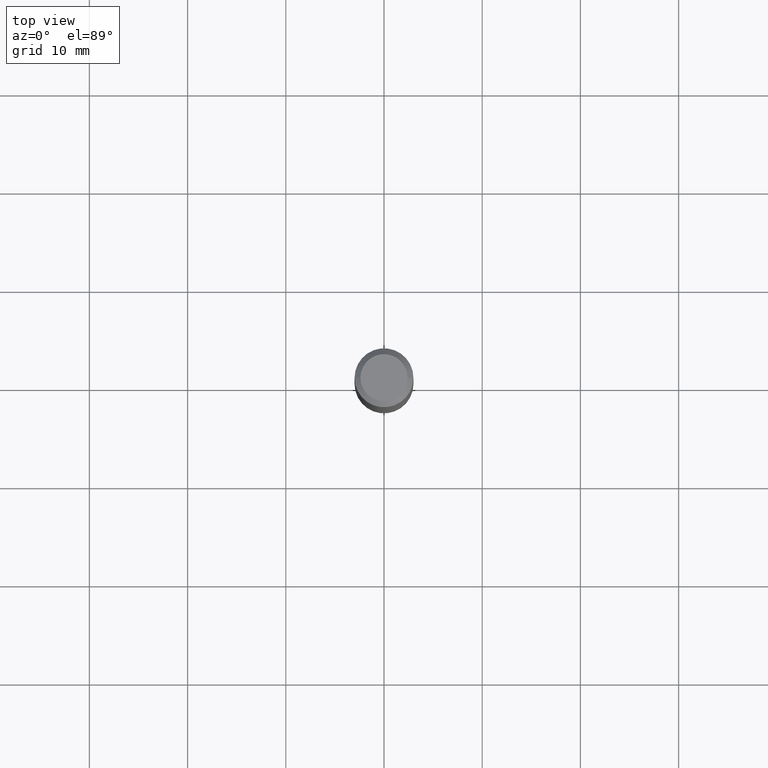
[diagram: clean part render]
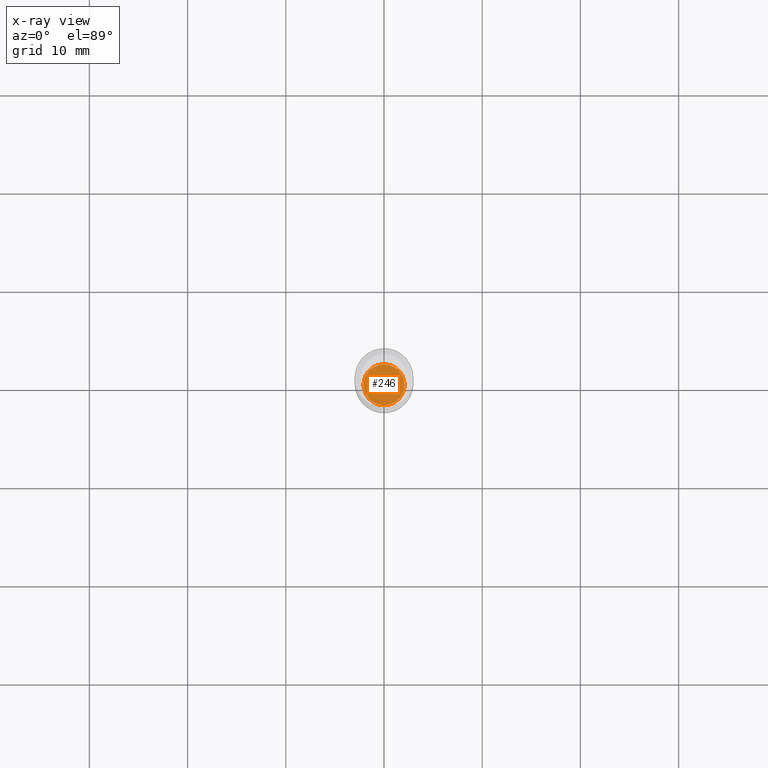
[diagram: x-ray — body ghosted, one internal face saturated and labeled with its STEP entity id]
A machine part, top view, then the same camera in x-ray: the body is ghosted and one INTERNAL B-rep face — a face not visible from any outside direction — is saturated and labeled: STEP entity #246.
In plain terms, the highlighted planar face has unit normal (-0, 0, 1).
Its self-contained STEP definition (entity closure, byte-faithful):
#17 = FACE_OUTER_BOUND ( 'NONE', #321, .T. ) ;
#36 = CARTESIAN_POINT ( 'NONE',  ( 0.08219999999999999529, -6.375095776593697590E-15, -1.661499999999999977 ) ) ;
#59 = CIRCLE ( 'NONE', #347, 0.08219999999999999529 ) ;
#78 = CIRCLE ( 'NONE', #380, 0.08219999999999999529 ) ;
#104 = DIRECTION ( 'NONE',  ( 1.000000000000000000, -6.982962677686265922E-15, 4.876176775795935793E-29 ) ) ;
#106 = EDGE_CURVE ( 'NONE', #434, #139, #78, .T. ) ;
#139 = VERTEX_POINT ( 'NONE', #335 ) ;
#183 = DIRECTION ( 'NONE',  ( -2.445468806185136597E-29, 3.491481338843145583E-15, 1.000000000000000000 ) ) ;
#193 = CARTESIAN_POINT ( 'NONE',  ( 4.063146421476604662E-29, -5.801096244487885918E-15, -1.661499999999999977 ) ) ;
#238 = CARTESIAN_POINT ( 'NONE',  ( 4.063146421476604662E-29, -5.801096244487885918E-15, -1.661499999999999977 ) ) ;
#240 = ORIENTED_EDGE ( 'NONE', *, *, #303, .F. ) ;
#241 = PLANE ( 'NONE',  #421 ) ;
#246 = ADVANCED_FACE ( 'NONE', ( #17 ), #241, .F. ) ;
#254 = DIRECTION ( 'NONE',  ( -2.445468806185136597E-29, 3.491481338843145583E-15, 1.000000000000000000 ) ) ;
#256 = DIRECTION ( 'NONE',  ( 1.000000000000000000, -6.982962677686266711E-15, 0.000000000000000000 ) ) ;
#303 = EDGE_CURVE ( 'NONE', #139, #434, #59, .T. ) ;
#321 = EDGE_LOOP ( 'NONE', ( #469, #240 ) ) ;
#335 = CARTESIAN_POINT ( 'NONE',  ( -0.08219999999999999529, -5.214380888518972792E-15, -1.661499999999999977 ) ) ;
#347 = AXIS2_PLACEMENT_3D ( 'NONE', #365, #254, #256 ) ;
#365 = CARTESIAN_POINT ( 'NONE',  ( 4.063146421476604662E-29, -5.801096244487885918E-15, -1.661499999999999977 ) ) ;
#373 = DIRECTION ( 'NONE',  ( 1.000000000000000000, -6.982962677686266711E-15, 0.000000000000000000 ) ) ;
#380 = AXIS2_PLACEMENT_3D ( 'NONE', #193, #183, #373 ) ;
#421 = AXIS2_PLACEMENT_3D ( 'NONE', #238, #443, #104 ) ;
#434 = VERTEX_POINT ( 'NONE', #36 ) ;
#443 = DIRECTION ( 'NONE',  ( -2.438088387897960049E-29, 3.491481338843145188E-15, 1.000000000000000000 ) ) ;
#469 = ORIENTED_EDGE ( 'NONE', *, *, #106, .F. ) ;